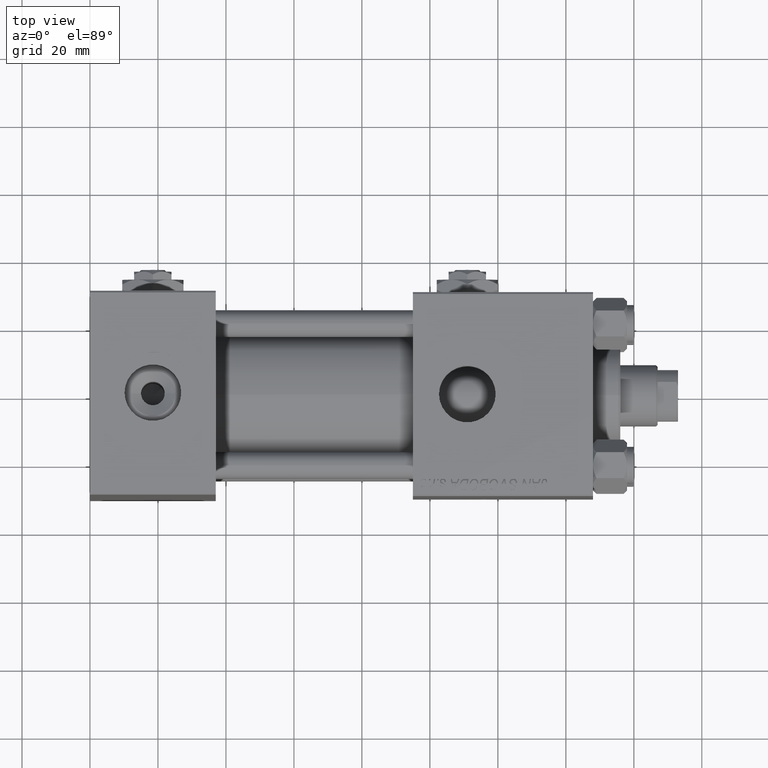
[diagram: clean part render]
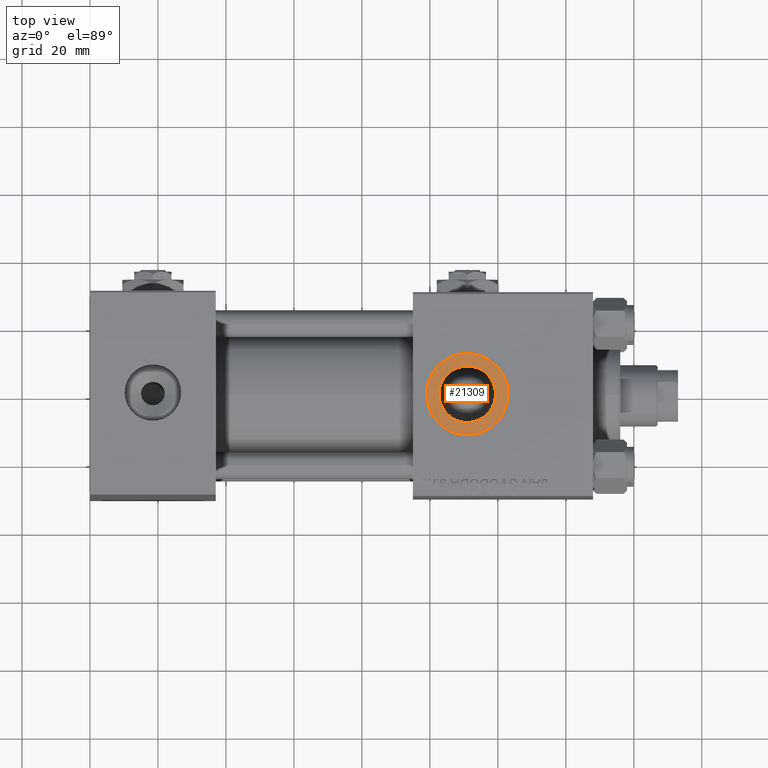
[diagram: same view with one face highlighted and labeled with its STEP entity id]
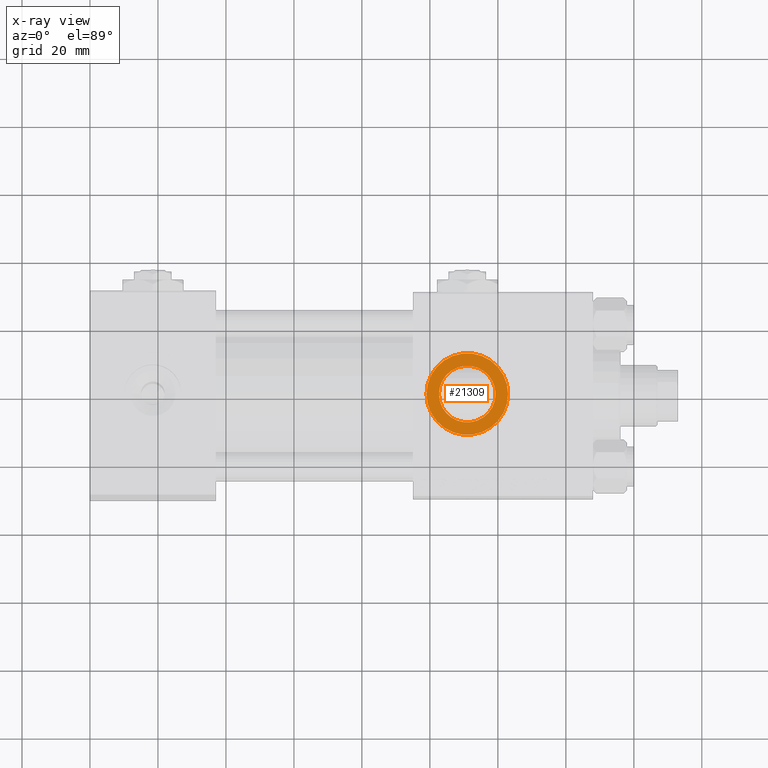
[diagram: x-ray of the same camera — body ghosted, the highlighted face saturated]
A machine part, top view. The second image highlights one B-rep face of the part: STEP entity #21309.
The next image is the same camera in x-ray: the body ghosted, the highlighted face saturated — about 0% of this face is hidden behind the body in this view.
In plain terms, the highlighted planar face has unit normal (0, 0, 1).
Its self-contained STEP definition (entity closure, byte-faithful):
#3147 = DIRECTION ( 'NONE',  ( 1.000000000000000000, 0.000000000000000000, -0.000000000000000000 ) ) ;
#4385 = ORIENTED_EDGE ( 'NONE', *, *, #44570, .F. ) ;
#6316 = CARTESIAN_POINT ( 'NONE',  ( 111.0000000000000000, -3.469446951953613794E-15, 29.79999999999999716 ) ) ;
#6572 = AXIS2_PLACEMENT_3D ( 'NONE', #6316, #30775, #50031 ) ;
#7507 = VERTEX_POINT ( 'NONE', #15217 ) ;
#7821 = ORIENTED_EDGE ( 'NONE', *, *, #16631, .T. ) ;
#8517 = CARTESIAN_POINT ( 'NONE',  ( 102.6700000000000017, -2.449316168263869821E-15, 29.79999999999999716 ) ) ;
#9870 = AXIS2_PLACEMENT_3D ( 'NONE', #50389, #29848, #45402 ) ;
#10985 = EDGE_LOOP ( 'NONE', ( #41289, #7821 ) ) ;
#12102 = EDGE_CURVE ( 'NONE', #20806, #7507, #19116, .T. ) ;
#15217 = CARTESIAN_POINT ( 'NONE',  ( 119.3300000000000125, -3.469446951953613794E-15, 29.79999999999999716 ) ) ;
#15705 = VERTEX_POINT ( 'NONE', #16269 ) ;
#16039 = PLANE ( 'NONE',  #16832 ) ;
#16269 = CARTESIAN_POINT ( 'NONE',  ( 123.0000000000000000, -3.469446951953613794E-15, 29.79999999999999716 ) ) ;
#16631 = EDGE_CURVE ( 'NONE', #46937, #15705, #30189, .T. ) ;
#16832 = AXIS2_PLACEMENT_3D ( 'NONE', #35773, #22907, #3147 ) ;
#16873 = DIRECTION ( 'NONE',  ( 1.000000000000000000, 0.000000000000000000, 0.000000000000000000 ) ) ;
#18432 = DIRECTION ( 'NONE',  ( 0.000000000000000000, 0.000000000000000000, 1.000000000000000000 ) ) ;
#19116 = CIRCLE ( 'NONE', #9870, 8.330000000000003624 ) ;
#19722 = FACE_OUTER_BOUND ( 'NONE', #10985, .T. ) ;
#20554 = EDGE_LOOP ( 'NONE', ( #4385, #42069 ) ) ;
#20806 = VERTEX_POINT ( 'NONE', #8517 ) ;
#21309 = ADVANCED_FACE ( 'NONE', ( #46862, #19722 ), #16039, .T. ) ;
#22378 = CARTESIAN_POINT ( 'NONE',  ( 111.0000000000000000, -3.469446951953613794E-15, 29.79999999999999716 ) ) ;
#22907 = DIRECTION ( 'NONE',  ( 0.000000000000000000, 0.000000000000000000, 1.000000000000000000 ) ) ;
#23422 = AXIS2_PLACEMENT_3D ( 'NONE', #22378, #18432, #31308 ) ;
#29848 = DIRECTION ( 'NONE',  ( 0.000000000000000000, 0.000000000000000000, 1.000000000000000000 ) ) ;
#30189 = CIRCLE ( 'NONE', #41962, 11.99999999999999645 ) ;
#30775 = DIRECTION ( 'NONE',  ( 0.000000000000000000, 0.000000000000000000, 1.000000000000000000 ) ) ;
#30941 = CIRCLE ( 'NONE', #6572, 11.99999999999999645 ) ;
#31308 = DIRECTION ( 'NONE',  ( 1.000000000000000000, 0.000000000000000000, 0.000000000000000000 ) ) ;
#32640 = CIRCLE ( 'NONE', #23422, 8.330000000000003624 ) ;
#35773 = CARTESIAN_POINT ( 'NONE',  ( 111.0000000000000000, -3.469446951953613794E-15, 29.79999999999999716 ) ) ;
#39549 = CARTESIAN_POINT ( 'NONE',  ( 99.00000000000000000, -1.999870792976792017E-15, 29.79999999999999716 ) ) ;
#41289 = ORIENTED_EDGE ( 'NONE', *, *, #43685, .T. ) ;
#41597 = DIRECTION ( 'NONE',  ( 0.000000000000000000, 0.000000000000000000, 1.000000000000000000 ) ) ;
#41962 = AXIS2_PLACEMENT_3D ( 'NONE', #45551, #41597, #16873 ) ;
#42069 = ORIENTED_EDGE ( 'NONE', *, *, #12102, .F. ) ;
#43685 = EDGE_CURVE ( 'NONE', #15705, #46937, #30941, .T. ) ;
#44570 = EDGE_CURVE ( 'NONE', #7507, #20806, #32640, .T. ) ;
#45402 = DIRECTION ( 'NONE',  ( 1.000000000000000000, 0.000000000000000000, 0.000000000000000000 ) ) ;
#45551 = CARTESIAN_POINT ( 'NONE',  ( 111.0000000000000000, -3.469446951953613794E-15, 29.79999999999999716 ) ) ;
#46862 = FACE_BOUND ( 'NONE', #20554, .T. ) ;
#46937 = VERTEX_POINT ( 'NONE', #39549 ) ;
#50031 = DIRECTION ( 'NONE',  ( 1.000000000000000000, 0.000000000000000000, 0.000000000000000000 ) ) ;
#50389 = CARTESIAN_POINT ( 'NONE',  ( 111.0000000000000000, -3.469446951953613794E-15, 29.79999999999999716 ) ) ;